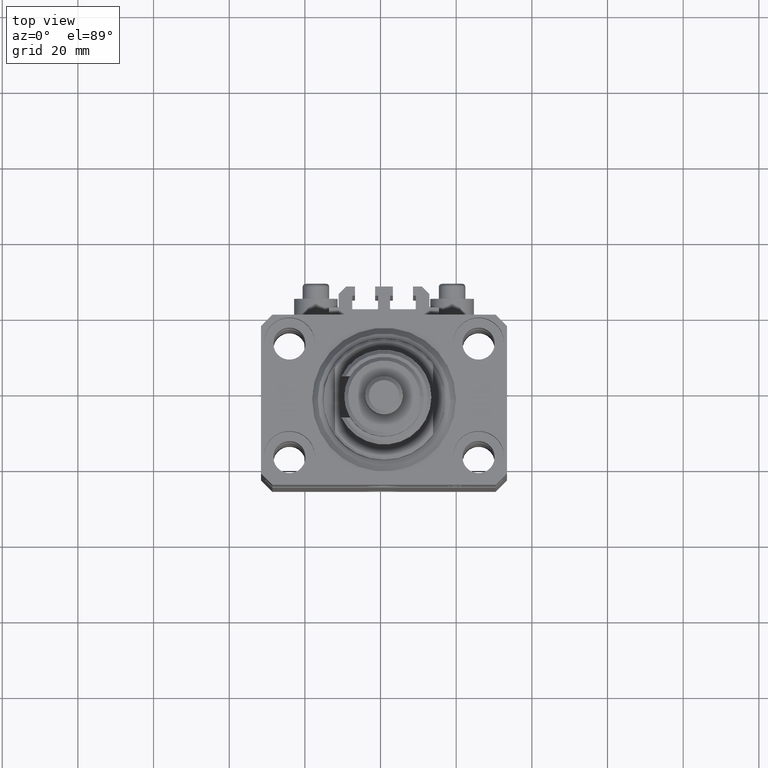
[diagram: clean part render]
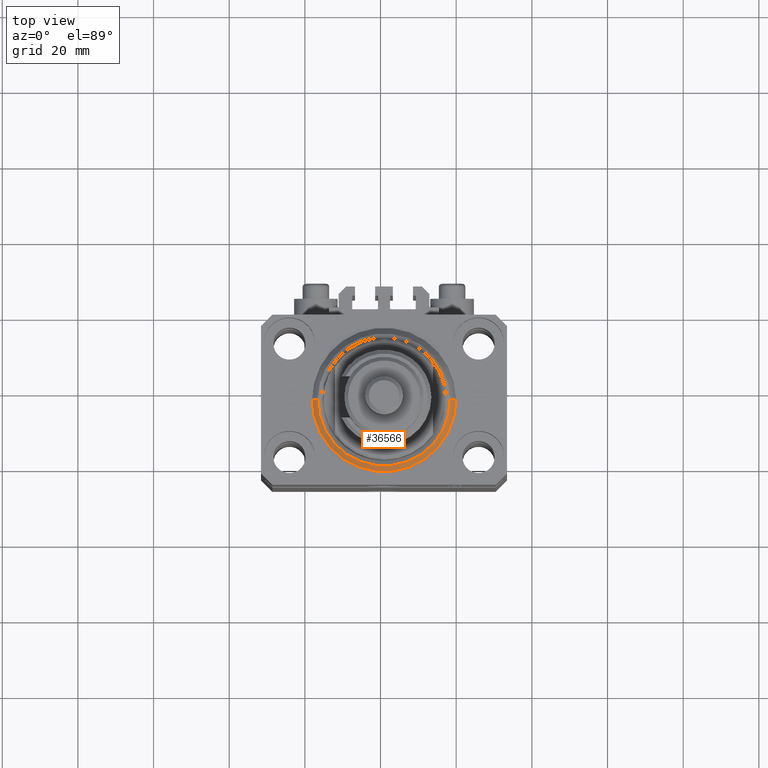
[diagram: same view with one face highlighted and labeled with its STEP entity id]
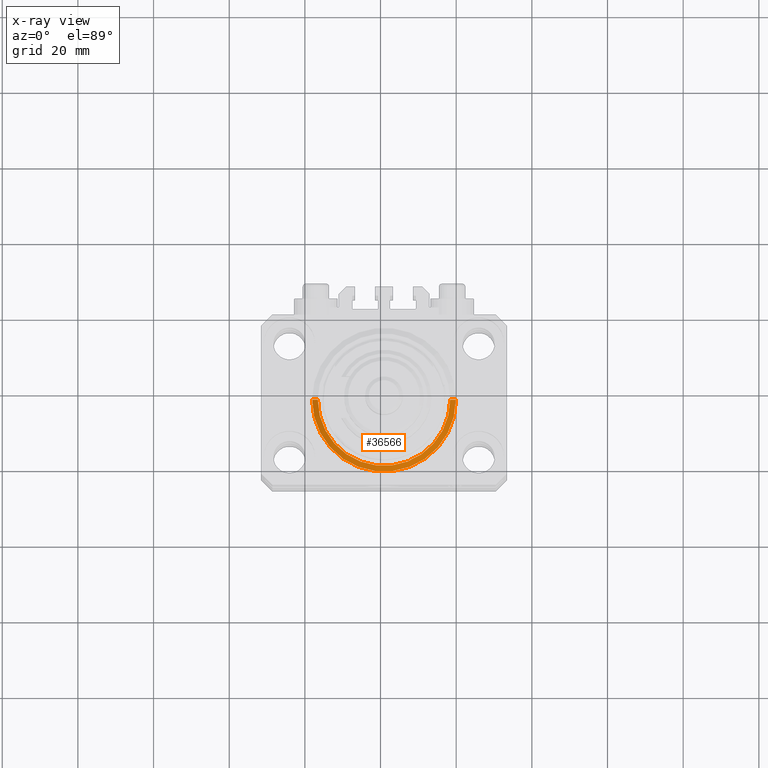
[diagram: x-ray of the same camera — body ghosted, the highlighted face saturated]
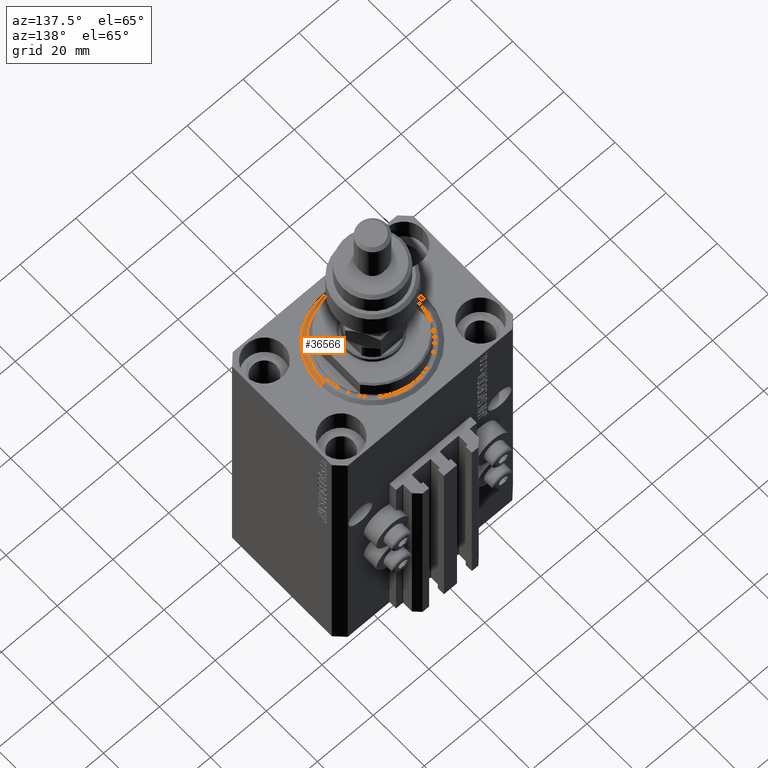
[diagram: same view with one face highlighted and labeled with its STEP entity id]
A machine part, top view. The second image highlights one B-rep face of the part: STEP entity #36566.
The next image is the same camera in x-ray: the body ghosted, the highlighted face saturated — about 0% of this face is hidden behind the body in this view.
A second angle (auxiliary view) of the same face is appended — the face is thin or edge-on in the first view.
In plain terms, the highlighted conical surface has half-angle 45 deg.
Its self-contained STEP definition (entity closure, byte-faithful):
#5179 = CARTESIAN_POINT ( 'NONE',  ( 19.00000000000000000, 0.000000000000000000, 1.500000000000001332 ) ) ;
#6355 = CARTESIAN_POINT ( 'NONE',  ( 17.49999999999999645, 0.000000000000000000, 0.000000000000000000 ) ) ;
#7001 = DIRECTION ( 'NONE',  ( 1.000000000000000000, 0.000000000000000000, 0.000000000000000000 ) ) ;
#9175 = CIRCLE ( 'NONE', #37406, 17.49999999999999645 ) ;
#10066 = CARTESIAN_POINT ( 'NONE',  ( 0.000000000000000000, 0.000000000000000000, 1.500000000000001332 ) ) ;
#11857 = CIRCLE ( 'NONE', #40089, 19.00000000000000000 ) ;
#15841 = CARTESIAN_POINT ( 'NONE',  ( 0.000000000000000000, 0.000000000000000000, 1.500000000000001332 ) ) ;
#17932 = VERTEX_POINT ( 'NONE', #31860 ) ;
#19869 = FACE_OUTER_BOUND ( 'NONE', #39352, .T. ) ;
#20623 = DIRECTION ( 'NONE',  ( 1.000000000000000000, 0.000000000000000000, 0.000000000000000000 ) ) ;
#21454 = DIRECTION ( 'NONE',  ( -0.000000000000000000, -0.000000000000000000, -1.000000000000000000 ) ) ;
#22305 = DIRECTION ( 'NONE',  ( 0.7071067811865483499, 0.000000000000000000, 0.7071067811865467956 ) ) ;
#22758 = EDGE_CURVE ( 'NONE', #24170, #47935, #39797, .T. ) ;
#23662 = DIRECTION ( 'NONE',  ( -0.000000000000000000, -0.000000000000000000, 1.000000000000000000 ) ) ;
#24170 = VERTEX_POINT ( 'NONE', #6355 ) ;
#26058 = LINE ( 'NONE', #42679, #45095 ) ;
#26791 = ORIENTED_EDGE ( 'NONE', *, *, #40022, .F. ) ;
#27071 = EDGE_CURVE ( 'NONE', #17932, #47935, #11857, .T. ) ;
#29254 = CONICAL_SURFACE ( 'NONE', #34900, 19.00000000000000000, 0.7853981633974492782 ) ;
#29762 = DIRECTION ( 'NONE',  ( -0.000000000000000000, -0.000000000000000000, 1.000000000000000000 ) ) ;
#31860 = CARTESIAN_POINT ( 'NONE',  ( -19.00000000000000000, 0.000000000000000000, 1.500000000000001332 ) ) ;
#31930 = VECTOR ( 'NONE', #22305, 1000.000000000000000 ) ;
#34542 = CARTESIAN_POINT ( 'NONE',  ( 19.00000000000000000, 2.326828918379970970E-15, 1.500000000000001332 ) ) ;
#34900 = AXIS2_PLACEMENT_3D ( 'NONE', #15841, #23662, #20623 ) ;
#35026 = EDGE_CURVE ( 'NONE', #47714, #17932, #26058, .T. ) ;
#35590 = CARTESIAN_POINT ( 'NONE',  ( -17.49999999999999645, 2.234980408443919215E-15, 0.000000000000000000 ) ) ;
#36566 = ADVANCED_FACE ( 'NONE', ( #19869 ), #29254, .T. ) ;
#37406 = AXIS2_PLACEMENT_3D ( 'NONE', #44225, #21454, #44723 ) ;
#37568 = ORIENTED_EDGE ( 'NONE', *, *, #35026, .F. ) ;
#39352 = EDGE_LOOP ( 'NONE', ( #37568, #26791, #42287, #44084 ) ) ;
#39797 = LINE ( 'NONE', #5179, #31930 ) ;
#40022 = EDGE_CURVE ( 'NONE', #24170, #47714, #9175, .T. ) ;
#40089 = AXIS2_PLACEMENT_3D ( 'NONE', #10066, #29762, #7001 ) ;
#42287 = ORIENTED_EDGE ( 'NONE', *, *, #22758, .T. ) ;
#42679 = CARTESIAN_POINT ( 'NONE',  ( -19.00000000000000000, 2.326828918379970970E-15, 1.500000000000001332 ) ) ;
#42935 = DIRECTION ( 'NONE',  ( -0.7071067811865483499, 8.659560562354942719E-17, 0.7071067811865467956 ) ) ;
#44084 = ORIENTED_EDGE ( 'NONE', *, *, #27071, .F. ) ;
#44225 = CARTESIAN_POINT ( 'NONE',  ( 0.000000000000000000, 0.000000000000000000, 0.000000000000000000 ) ) ;
#44723 = DIRECTION ( 'NONE',  ( 1.000000000000000000, 0.000000000000000000, 0.000000000000000000 ) ) ;
#45095 = VECTOR ( 'NONE', #42935, 1000.000000000000000 ) ;
#47714 = VERTEX_POINT ( 'NONE', #35590 ) ;
#47935 = VERTEX_POINT ( 'NONE', #34542 ) ;